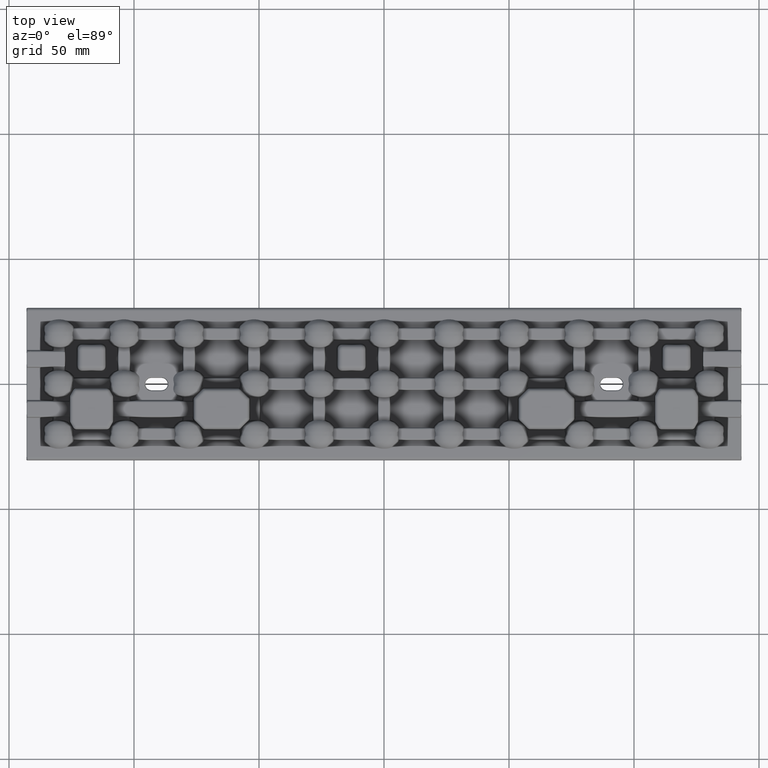
[diagram: clean part render]
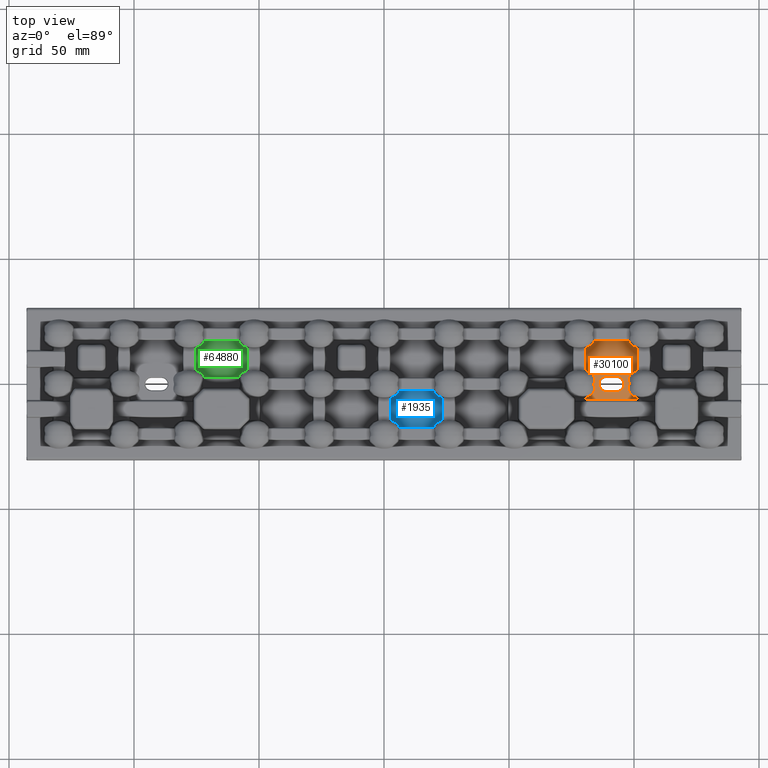
[diagram: same view with three faces highlighted in distinct colors, each labeled with its STEP entity id]
A machine part, top view with three faces highlighted in distinct colors.
Their STEP definitions:

[orange] entity #30100 — the highlighted planar face has unit normal (-0, 0, 1).
#277 = VECTOR ( 'NONE', #27429, 1000.000000000000000 ) ;
#289 = VERTEX_POINT ( 'NONE', #24536 ) ;
#296 = CARTESIAN_POINT ( 'NONE',  ( 98.43869014125911600, -3.735444147710731400, 1.999999999999999600 ) ) ;
#639 = VERTEX_POINT ( 'NONE', #73683 ) ;
#913 = CARTESIAN_POINT ( 'NONE',  ( 99.62640510720928000, 4.730987706999896700, 1.999999999999999100 ) ) ;
#990 = CARTESIAN_POINT ( 'NONE',  ( 80.74142219370168000, 5.460893193894268200, 2.000000000000000000 ) ) ;
#1166 = CARTESIAN_POINT ( 'NONE',  ( 97.78475374245123000, 1.321526035106113800, 1.999999999999721600 ) ) ;
#1310 = CARTESIAN_POINT ( 'NONE',  ( 81.44640795026977300, 14.78961119562334600, 2.000000000000001800 ) ) ;
#1363 = CARTESIAN_POINT ( 'NONE',  ( 82.59717095400965500, 4.587828159182689300, 2.000000000000141700 ) ) ;
#1382 = VECTOR ( 'NONE', #33136, 1000.000000000000000 ) ;
#1512 = DIRECTION ( 'NONE',  ( 0.0000000000000000000, -0.0000000000000000000, -1.000000000000000000 ) ) ;
#2007 = B_SPLINE_CURVE_WITH_KNOTS ( 'NONE', 3,
 ( #8662, #44672, #75012, #38884, #2896, #44937, #8909, #50971, #14994, #56969, #21043, #63033 ),
 .UNSPECIFIED., .F., .F.,
 ( 4, 2, 2, 2, 2, 4 ),
 ( 0.0000000000000000000, 0.001114944841971941900, 0.001672417262957909000, 0.002229889683943875600, 0.003344834525915839600, 0.004459779367887804100 ),
 .UNSPECIFIED. ) ;
#2126 = CARTESIAN_POINT ( 'NONE',  ( 0.0000000000000000000, -6.228681456733721000, 2.000000000000000000 ) ) ;
#2896 = CARTESIAN_POINT ( 'NONE',  ( 98.67899717475172800, 16.00835536796488900, 2.000000000000605300 ) ) ;
#3294 = CARTESIAN_POINT ( 'NONE',  ( 97.85770592230181800, -1.074001446737116800, 1.999999999999928100 ) ) ;
#5783 = CARTESIAN_POINT ( 'NONE',  ( 81.23445959650202000, -5.303634268258525400, 2.000000000000133700 ) ) ;
#6010 = CARTESIAN_POINT ( 'NONE',  ( 80.74142219370166600, 14.53910680610568600, 2.000000000000000000 ) ) ;
#6031 = CARTESIAN_POINT ( 'NONE',  ( 84.26756440194364500, -1.969308059692606700, 2.000000000000001300 ) ) ;
#6328 = CARTESIAN_POINT ( 'NONE',  ( 98.98930174818488600, -4.277950948355939300, 2.000000000000048000 ) ) ;
#6649 = CARTESIAN_POINT ( 'NONE',  ( 96.01285965834198100, -1.592040838891558300E-015, 2.000000000000000000 ) ) ;
#6672 = VERTEX_POINT ( 'NONE', #6010 ) ;
#6925 = CARTESIAN_POINT ( 'NONE',  ( 98.99668545396727400, 4.284042499998435900, 1.999999999999999600 ) ) ;
#7004 = EDGE_LOOP ( 'NONE', ( #29050, #62003, #53557, #54531, #14167, #61153, #20823, #58362, #43419, #18993, #35876, #67960, #73697, #30312 ) ) ;
#7139 = CARTESIAN_POINT ( 'NONE',  ( 84.20756797739517200, 1.321598108423056600, 1.999999999999897600 ) ) ;
#7195 = CIRCLE ( 'NONE', #63554, 3.012859658342081900 ) ;
#7334 = VERTEX_POINT ( 'NONE', #27419 ) ;
#7346 = CARTESIAN_POINT ( 'NONE',  ( 82.43502197326503700, 15.29853394021126600, 2.000000000000000400 ) ) ;
#7400 = CARTESIAN_POINT ( 'NONE',  ( 81.71205981101827800, 5.102806630189242300, 2.000000000000000900 ) ) ;
#7942 = CARTESIAN_POINT ( 'NONE',  ( 84.14229413950298000, 1.074001471699702800, 1.999999999992754000 ) ) ;
#7978 = LINE ( 'NONE', #28706, #54004 ) ;
#8035 = EDGE_CURVE ( 'NONE', #25635, #49258, #41551, .T. ) ;
#8090 = EDGE_CURVE ( 'NONE', #11808, #60977, #17080, .T. ) ;
#8662 = CARTESIAN_POINT ( 'NONE',  ( 97.87528341715064100, 17.25857780629792200, 2.000000000000000000 ) ) ;
#8909 = CARTESIAN_POINT ( 'NONE',  ( 99.09860470962297500, 15.63777386931149800, 2.000000000000000000 ) ) ;
#9555 = AXIS2_PLACEMENT_3D ( 'NONE', #35586, #29804, #72010 ) ;
#9580 = B_SPLINE_CURVE_WITH_KNOTS ( 'NONE', 3,
 ( #37081, #12940, #7139, #49187, #13199, #55201, #19274, #61256, #25295, #67358, #31290, #73516, #37343, #1363, #43440, #7400, #49446, #13450 ),
 .UNSPECIFIED., .F., .F.,
 ( 4, 2, 2, 2, 2, 2, 2, 2, 4 ),
 ( 0.0005961375090280039400, 0.0009801429283145099300, 0.001364148347601016000, 0.002132159186174027400, 0.002900170024747038300, 0.003668180863320049600, 0.004436191701893062700, 0.005204202540466074500, 0.006740224217612135300 ),
 .UNSPECIFIED. ) ;
#10091 = CARTESIAN_POINT ( 'NONE',  ( 101.2585778062981300, -4.445222154178567900, 2.000000000000000000 ) ) ;
#10654 = ORIENTED_EDGE ( 'NONE', *, *, #16138, .T. ) ;
#11808 = VERTEX_POINT ( 'NONE', #50843 ) ;
#11825 = CARTESIAN_POINT ( 'NONE',  ( 82.37407811878962600, -4.730697634440048200, 2.000000000000000000 ) ) ;
#12094 = CARTESIAN_POINT ( 'NONE',  ( 84.21537125051561600, -1.321949940138769800, 1.999999999999863000 ) ) ;
#12287 = VERTEX_POINT ( 'NONE', #17192 ) ;
#12385 = CARTESIAN_POINT ( 'NONE',  ( 99.61913803724856100, -4.726566769627140700, 1.999999999999999600 ) ) ;
#12583 = CARTESIAN_POINT ( 'NONE',  ( 88.99999999999990100, -1.836970198721029200E-015, 2.000000000000000000 ) ) ;
#12940 = CARTESIAN_POINT ( 'NONE',  ( 84.17848212711336900, 1.196786239459573200, 2.000000000000000900 ) ) ;
#12982 = CARTESIAN_POINT ( 'NONE',  ( 98.44160131915343500, 3.739053391010542800, 1.999999999999999600 ) ) ;
#13104 = DIRECTION ( 'NONE',  ( 9.251858538542944200E-016, -1.000000000000000000, 0.0000000000000000000 ) ) ;
#13199 = CARTESIAN_POINT ( 'NONE',  ( 84.26183617900368000, 1.706540553851350500, 1.999999999999959800 ) ) ;
#13395 = CARTESIAN_POINT ( 'NONE',  ( 83.03792449826417500, 15.74836117042493700, 1.999999999999084500 ) ) ;
#13450 = CARTESIAN_POINT ( 'NONE',  ( 80.74142219370168000, 5.460893193894268200, 2.000000000000000000 ) ) ;
#13702 = CARTESIAN_POINT ( 'NONE',  ( 101.2585778062981300, -5.460893199764008400, 2.000000000000000000 ) ) ;
#14167 = ORIENTED_EDGE ( 'NONE', *, *, #68910, .F. ) ;
#14994 = CARTESIAN_POINT ( 'NONE',  ( 99.87780439658128300, 15.11663491878732500, 1.999999999999998700 ) ) ;
#15407 = CARTESIAN_POINT ( 'NONE',  ( 97.96102146865918300, -0.7234548539329035400, 1.999999999999927600 ) ) ;
#15659 = CARTESIAN_POINT ( 'NONE',  ( 98.01315452245542300, 0.3655012217748671600, 2.000000000000000000 ) ) ;
#16138 = EDGE_CURVE ( 'NONE', #29096, #30961, #30330, .T. ) ;
#16192 = DIRECTION ( 'NONE',  ( 0.0000000000000000000, 1.000000000000000000, -0.0000000000000000000 ) ) ;
#17080 = LINE ( 'NONE', #2126, #66905 ) ;
#17192 = CARTESIAN_POINT ( 'NONE',  ( 101.2585778062981300, 5.460893199763964000, 2.000000000000000000 ) ) ;
#17797 = VERTEX_POINT ( 'NONE', #25520 ) ;
#17914 = CARTESIAN_POINT ( 'NONE',  ( 83.00424861268012900, -4.283286065571128500, 2.000000000000624800 ) ) ;
#17953 = CARTESIAN_POINT ( 'NONE',  ( 97.82156554461914800, -1.196624679212736400, 1.999999999999999600 ) ) ;
#18196 = CARTESIAN_POINT ( 'NONE',  ( 97.75085427278590100, -1.574977623442797900, 1.999999999999800600 ) ) ;
#18218 = ORIENTED_EDGE ( 'NONE', *, *, #47277, .T. ) ;
#18458 = CARTESIAN_POINT ( 'NONE',  ( 100.7656478504817800, -5.303668547989127000, 1.999999999999998700 ) ) ;
#18659 = DIRECTION ( 'NONE',  ( 1.000000000000000000, 0.0000000000000000000, 0.0000000000000000000 ) ) ;
#18993 = ORIENTED_EDGE ( 'NONE', *, *, #8035, .T. ) ;
#19066 = CARTESIAN_POINT ( 'NONE',  ( 98.01011052647366700, 3.091443646617064300, 2.000000000000041300 ) ) ;
#19274 = CARTESIAN_POINT ( 'NONE',  ( 84.23856500899532300, 2.351581289907211500, 2.000000000000000000 ) ) ;
#19294 = LINE ( 'NONE', #69513, #1382 ) ;
#19482 = CARTESIAN_POINT ( 'NONE',  ( 83.44507333174972500, 16.13723412517457900, 2.000000000000066600 ) ) ;
#20036 = CARTESIAN_POINT ( 'NONE',  ( 83.98684495882460500, 0.3654953217809184300, 2.000000000000000000 ) ) ;
#20823 = ORIENTED_EDGE ( 'NONE', *, *, #36884, .F. ) ;
#20988 = VERTEX_POINT ( 'NONE', #990 ) ;
#21043 = CARTESIAN_POINT ( 'NONE',  ( 100.9001623016136800, 14.65342680097824200, 2.000000000000000900 ) ) ;
#21709 = CARTESIAN_POINT ( 'NONE',  ( 97.85770592230186100, 1.074001446737053300, 1.999999999999976700 ) ) ;
#22397 = CARTESIAN_POINT ( 'NONE',  ( 101.2585778062981300, -6.228681456733721000, 2.000000000000000000 ) ) ;
#23954 = CARTESIAN_POINT ( 'NONE',  ( 83.55865366993258200, -3.738730253960392200, 2.000000000000000900 ) ) ;
#23993 = CARTESIAN_POINT ( 'NONE',  ( 97.85770592230181800, -1.074001446737116800, 1.999999999999928100 ) ) ;
#24245 = CARTESIAN_POINT ( 'NONE',  ( 97.72929055930015400, -2.094291261402156500, 1.999999999999991300 ) ) ;
#24536 = CARTESIAN_POINT ( 'NONE',  ( 97.85770592230181800, -1.074001446737116800, 1.999999999999928100 ) ) ;
#24645 = B_SPLINE_CURVE_WITH_KNOTS ( 'NONE', 3,
 ( #30813, #66894, #36871, #913, #42955, #6925, #48988, #12982, #54988, #19066, #61030, #25072, #67147, #31085, #73279, #37128, #1166, #43233 ),
 .UNSPECIFIED., .F., .F.,
 ( 4, 2, 2, 2, 2, 2, 2, 2, 4 ),
 ( 0.0000000000000000000, 0.001529839353966039700, 0.002294759030949077900, 0.003059678707932115800, 0.003824598384915154200, 0.004589518061898192200, 0.004971977900389711400, 0.005354437738881229700, 0.006119357415864267200 ),
 .UNSPECIFIED. ) ;
#25072 = CARTESIAN_POINT ( 'NONE',  ( 97.79787916432304900, 2.481995976880723400, 1.999999999999997800 ) ) ;
#25295 = CARTESIAN_POINT ( 'NONE',  ( 83.99178305065653700, 3.087952510916547800, 2.000000000000002200 ) ) ;
#25495 = CARTESIAN_POINT ( 'NONE',  ( 83.79501201246351600, 16.58190241218928700, 1.999999999999996700 ) ) ;
#25520 = CARTESIAN_POINT ( 'NONE',  ( 101.2585778062981300, 14.53910680023600400, 2.000000000000000000 ) ) ;
#25604 = LINE ( 'NONE', #67841, #39710 ) ;
#25635 = VERTEX_POINT ( 'NONE', #7942 ) ;
#25943 = VERTEX_POINT ( 'NONE', #41240 ) ;
#25998 = EDGE_CURVE ( 'NONE', #25943, #29096, #36260, .T. ) ;
#26023 = CARTESIAN_POINT ( 'NONE',  ( 84.14229413950298000, 1.074001471699702800, 1.999999999992754000 ) ) ;
#26064 = EDGE_CURVE ( 'NONE', #7334, #11808, #64537, .T. ) ;
#26300 = DIRECTION ( 'NONE',  ( 1.000000000000000000, -0.0000000000000000000, 0.0000000000000000000 ) ) ;
#27419 = CARTESIAN_POINT ( 'NONE',  ( 80.74142219370168000, -5.460893193894309900, 2.000000000000000000 ) ) ;
#27429 = DIRECTION ( 'NONE',  ( 1.000000000000000000, 1.084202172485503300E-016, -0.0000000000000000000 ) ) ;
#27998 = FACE_BOUND ( 'NONE', #71999, .T. ) ;
#28286 = VERTEX_POINT ( 'NONE', #6649 ) ;
#28706 = CARTESIAN_POINT ( 'NONE',  ( 82.44522215417829600, 17.25857780629792200, 2.000000000000000000 ) ) ;
#29050 = ORIENTED_EDGE ( 'NONE', *, *, #74946, .F. ) ;
#29096 = VERTEX_POINT ( 'NONE', #60285 ) ;
#29804 = DIRECTION ( 'NONE',  ( -0.0000000000000000000, 0.0000000000000000000, 1.000000000000000000 ) ) ;
#29935 = CARTESIAN_POINT ( 'NONE',  ( 83.98997629533529600, -3.091256687682806700, 2.000000000000044000 ) ) ;
#30100 = ADVANCED_FACE ( 'NONE', ( #42109, #27998 ), #65888, .T. ) ;
#30230 = CARTESIAN_POINT ( 'NONE',  ( 97.90231760156548500, -2.852587655935891600, 2.000000000000001300 ) ) ;
#30312 = ORIENTED_EDGE ( 'NONE', *, *, #68250, .T. ) ;
#30330 = LINE ( 'NONE', #51359, #277 ) ;
#30445 = B_SPLINE_CURVE_WITH_KNOTS ( 'NONE', 3,
 ( #3294, #15407, #51635, #15659, #57635, #21709 ),
 .UNSPECIFIED., .F., .F.,
 ( 4, 2, 4 ),
 ( 0.0000000000000000000, 0.001085195747919804600, 0.002170391495839609200 ),
 .UNSPECIFIED. ) ;
#30813 = CARTESIAN_POINT ( 'NONE',  ( 101.2585778062981300, 5.460893199763964000, 2.000000000000000000 ) ) ;
#30961 = VERTEX_POINT ( 'NONE', #77021 ) ;
#31085 = CARTESIAN_POINT ( 'NONE',  ( 97.73903709689874100, 2.097430945669185300, 1.999999999999653200 ) ) ;
#31232 = CARTESIAN_POINT ( 'NONE',  ( 80.74142219370166600, 14.53910680610568600, 2.000000000000000000 ) ) ;
#31290 = CARTESIAN_POINT ( 'NONE',  ( 83.56136751711629500, 3.735376299703735200, 2.000000000000001800 ) ) ;
#31489 = CARTESIAN_POINT ( 'NONE',  ( 84.06336189217307700, 17.07877684787498800, 1.999999999999999600 ) ) ;
#32061 = CARTESIAN_POINT ( 'NONE',  ( 84.03897859452686700, -0.7234548944411141000, 2.000000000000000000 ) ) ;
#32182 = B_SPLINE_CURVE_WITH_KNOTS ( 'NONE', 3,
 ( #31232, #67305, #1310, #43385, #7346, #49390, #13395, #55405, #19482, #61453, #25495, #67570, #31489, #73718 ),
 .UNSPECIFIED., .F., .F.,
 ( 4, 2, 2, 2, 2, 2, 4 ),
 ( 1.734723475976807100E-018, 0.001111915370787490600, 0.002223830741574979400, 0.002779788426968707400, 0.003335746112362435000, 0.003891703797756162600, 0.004447661483149890200 ),
 .UNSPECIFIED. ) ;
#32372 = EDGE_CURVE ( 'NONE', #30961, #28286, #62605, .T. ) ;
#33120 = LINE ( 'NONE', #75748, #49126 ) ;
#33136 = DIRECTION ( 'NONE',  ( 9.251858538542944200E-016, -1.000000000000000000, 0.0000000000000000000 ) ) ;
#33489 = CARTESIAN_POINT ( 'NONE',  ( 84.14229413949614400, -1.074001471697171300, 2.000000000010464100 ) ) ;
#33937 = CARTESIAN_POINT ( 'NONE',  ( 92.99999999999990100, -1.592040838891558300E-015, 2.000000000000000000 ) ) ;
#34259 = VERTEX_POINT ( 'NONE', #39019 ) ;
#34403 = VECTOR ( 'NONE', #13104, 1000.000000000000000 ) ;
#34584 = EDGE_CURVE ( 'NONE', #25635, #20988, #9580, .T. ) ;
#34752 = DIRECTION ( 'NONE',  ( -1.000000000000000000, 0.0000000000000000000, 0.0000000000000000000 ) ) ;
#35586 = CARTESIAN_POINT ( 'NONE',  ( 0.0000000000000000000, 0.0000000000000000000, 2.000000000000000000 ) ) ;
#35702 = CARTESIAN_POINT ( 'NONE',  ( 80.74142219370168000, -5.460893193894309900, 2.000000000000000000 ) ) ;
#35876 = ORIENTED_EDGE ( 'NONE', *, *, #64104, .F. ) ;
#35960 = CARTESIAN_POINT ( 'NONE',  ( 84.20174675814644200, -2.483514733839518500, 1.999999999999989100 ) ) ;
#36254 = CARTESIAN_POINT ( 'NONE',  ( 98.27755393781316700, -3.531508894596997900, 1.999999999999999600 ) ) ;
#36260 = CIRCLE ( 'NONE', #69442, 3.012859658342081900 ) ;
#36871 = CARTESIAN_POINT ( 'NONE',  ( 100.2938624783324300, 5.105397898926746300, 1.999999999999999100 ) ) ;
#36884 = EDGE_CURVE ( 'NONE', #6672, #639, #32182, .T. ) ;
#37081 = CARTESIAN_POINT ( 'NONE',  ( 84.14229413950298000, 1.074001471699702800, 1.999999999992754000 ) ) ;
#37128 = CARTESIAN_POINT ( 'NONE',  ( 97.74058038011565900, 1.582266397288156100, 2.000000000000000000 ) ) ;
#37343 = CARTESIAN_POINT ( 'NONE',  ( 83.01026093098113300, 4.278284003696696500, 2.000000000000141200 ) ) ;
#37510 = CARTESIAN_POINT ( 'NONE',  ( 92.99999999999990100, -1.592040838891558300E-015, 2.000000000000000000 ) ) ;
#38884 = CARTESIAN_POINT ( 'NONE',  ( 98.54772348950083900, 16.14509560246114400, 2.000000000000020900 ) ) ;
#39019 = CARTESIAN_POINT ( 'NONE',  ( 97.85770592230186100, 1.074001446737053300, 1.999999999999976700 ) ) ;
#39189 = VERTEX_POINT ( 'NONE', #60283 ) ;
#39626 = DIRECTION ( 'NONE',  ( 0.0000000000000000000, 1.000000000000000000, -0.0000000000000000000 ) ) ;
#39710 = VECTOR ( 'NONE', #73963, 1000.000000000000000 ) ;
#40000 = DIRECTION ( 'NONE',  ( 1.000000000000000000, 0.0000000000000000000, 0.0000000000000000000 ) ) ;
#40825 = EDGE_CURVE ( 'NONE', #12287, #17797, #33120, .T. ) ;
#41240 = CARTESIAN_POINT ( 'NONE',  ( 88.99999999999990100, -3.012859658342088600, 2.000000000000000000 ) ) ;
#41551 = B_SPLINE_CURVE_WITH_KNOTS ( 'NONE', 3,
 ( #26023, #62013, #20036, #68144, #32061, #74271 ),
 .UNSPECIFIED., .F., .F.,
 ( 4, 2, 4 ),
 ( 0.0000000000000000000, 0.001085195773853729700, 0.002170391547707459500 ),
 .UNSPECIFIED. ) ;
#42050 = CARTESIAN_POINT ( 'NONE',  ( 84.26094487065327600, -2.097856799944680400, 1.999999999999809300 ) ) ;
#42109 = FACE_OUTER_BOUND ( 'NONE', #7004, .T. ) ;
#42363 = CARTESIAN_POINT ( 'NONE',  ( 98.79322347049050300, -4.107286651053903400, 1.999999999999999600 ) ) ;
#42955 = CARTESIAN_POINT ( 'NONE',  ( 99.41069949195758700, 4.593152252313268000, 2.000000000000000000 ) ) ;
#43233 = CARTESIAN_POINT ( 'NONE',  ( 97.85770592230186100, 1.074001446737053300, 1.999999999999976700 ) ) ;
#43385 = CARTESIAN_POINT ( 'NONE',  ( 82.11403311489185300, 15.11236120509381900, 2.000000000000001300 ) ) ;
#43412 = LINE ( 'NONE', #10091, #59319 ) ;
#43419 = ORIENTED_EDGE ( 'NONE', *, *, #34584, .F. ) ;
#43440 = CARTESIAN_POINT ( 'NONE',  ( 82.38137157163369300, 4.726251110385579300, 2.000000000000000900 ) ) ;
#43596 = DIRECTION ( 'NONE',  ( 1.000000000000000000, 0.0000000000000000000, 0.0000000000000000000 ) ) ;
#44672 = CARTESIAN_POINT ( 'NONE',  ( 97.99803419202372400, 16.89885493394615800, 2.000000000000003100 ) ) ;
#44937 = CARTESIAN_POINT ( 'NONE',  ( 98.95393234875423600, 15.75530069695256500, 2.000000000000606200 ) ) ;
#47277 = EDGE_CURVE ( 'NONE', #28286, #63992, #7195, .T. ) ;
#47843 = CARTESIAN_POINT ( 'NONE',  ( 81.70628350719046300, -5.105353993410618700, 2.000000000000000400 ) ) ;
#48098 = CARTESIAN_POINT ( 'NONE',  ( 84.25946920228092600, -1.582808662235438300, 2.000000000000000900 ) ) ;
#48378 = CARTESIAN_POINT ( 'NONE',  ( 99.40312674361477700, -4.588056543876776400, 2.000000000000048000 ) ) ;
#48988 = CARTESIAN_POINT ( 'NONE',  ( 98.79884343481460000, 4.112611608978948400, 2.000000000000000000 ) ) ;
#49095 = CARTESIAN_POINT ( 'NONE',  ( 80.74142219370168000, -6.403733341286148600, 2.000000000000000000 ) ) ;
#49126 = VECTOR ( 'NONE', #39626, 1000.000000000000000 ) ;
#49187 = CARTESIAN_POINT ( 'NONE',  ( 84.24927090036959500, 1.575922386107954500, 1.999999999999897200 ) ) ;
#49258 = VERTEX_POINT ( 'NONE', #33489 ) ;
#49390 = CARTESIAN_POINT ( 'NONE',  ( 82.89008342987784800, 15.62888595811225800, 2.000000000000000000 ) ) ;
#49446 = CARTESIAN_POINT ( 'NONE',  ( 81.23426444005420400, 5.303696515247316300, 2.000000000000000900 ) ) ;
#50424 = B_SPLINE_CURVE_WITH_KNOTS ( 'NONE', 3,
 ( #35702, #5783, #47843, #11825, #53839, #17914, #59876, #23954, #65994, #29935, #72123, #35960, #78221, #42050, #6031, #48098, #12094, #54091 ),
 .UNSPECIFIED., .F., .F.,
 ( 4, 2, 2, 2, 2, 2, 2, 2, 4 ),
 ( 5.473877254245887300E-016, 0.001530540898884042400, 0.002295811348325790100, 0.003061081797767537600, 0.003826352247209285500, 0.004591622696651033800, 0.004974257921371913800, 0.005356893146092793000, 0.006122163595534552100 ),
 .UNSPECIFIED. ) ;
#50430 = AXIS2_PLACEMENT_3D ( 'NONE', #33937, #76146, #40000 ) ;
#50746 = EDGE_CURVE ( 'NONE', #12287, #34259, #24645, .T. ) ;
#50843 = CARTESIAN_POINT ( 'NONE',  ( 80.74142219370168000, -6.228681456733721000, 2.000000000000000000 ) ) ;
#50865 = EDGE_CURVE ( 'NONE', #39189, #639, #7978, .T. ) ;
#50971 = CARTESIAN_POINT ( 'NONE',  ( 99.55062361644009200, 15.30768202563246700, 1.999999999999999100 ) ) ;
#51359 = CARTESIAN_POINT ( 'NONE',  ( -3.266548986968408800E-016, 3.012859658342074800, 2.000000000000000000 ) ) ;
#51635 = CARTESIAN_POINT ( 'NONE',  ( 98.01315509440669900, -0.3654953128101505200, 2.000000000000000000 ) ) ;
#53557 = ORIENTED_EDGE ( 'NONE', *, *, #50746, .F. ) ;
#53839 = CARTESIAN_POINT ( 'NONE',  ( 82.58992051376249300, -4.592748212805552100, 2.000000000000624800 ) ) ;
#54004 = VECTOR ( 'NONE', #34752, 1000.000000000000000 ) ;
#54091 = CARTESIAN_POINT ( 'NONE',  ( 84.14229413949614400, -1.074001471697171300, 2.000000000010464100 ) ) ;
#54126 = CARTESIAN_POINT ( 'NONE',  ( 97.79252382607825200, -1.321221321118816000, 1.999999999999801000 ) ) ;
#54405 = CARTESIAN_POINT ( 'NONE',  ( 100.2886080330388700, -5.103124325894247800, 2.000000000000000000 ) ) ;
#54531 = ORIENTED_EDGE ( 'NONE', *, *, #40825, .T. ) ;
#54607 = DIRECTION ( 'NONE',  ( 0.0000000000000000000, -0.0000000000000000000, -1.000000000000000000 ) ) ;
#54988 = CARTESIAN_POINT ( 'NONE',  ( 98.27865832373649400, 3.532861123742006000, 2.000000000000041300 ) ) ;
#55201 = CARTESIAN_POINT ( 'NONE',  ( 84.27062758848939000, 2.094669899912990000, 1.999999999999959400 ) ) ;
#55405 = CARTESIAN_POINT ( 'NONE',  ( 83.31500584046108300, 16.00230770594037800, 1.999999999999084500 ) ) ;
#55711 = ORIENTED_EDGE ( 'NONE', *, *, #25998, .T. ) ;
#56969 = CARTESIAN_POINT ( 'NONE',  ( 100.5516370764030700, 14.79023344848449800, 1.999999999999999600 ) ) ;
#57635 = CARTESIAN_POINT ( 'NONE',  ( 97.96102146180622600, 0.7234548771856939000, 2.000000000000000000 ) ) ;
#58362 = ORIENTED_EDGE ( 'NONE', *, *, #59521, .T. ) ;
#59319 = VECTOR ( 'NONE', #16192, 1000.000000000000000 ) ;
#59521 = EDGE_CURVE ( 'NONE', #6672, #20988, #19294, .T. ) ;
#59876 = CARTESIAN_POINT ( 'NONE',  ( 83.20176156549401000, -4.112035434156784900, 2.000000000000001300 ) ) ;
#60174 = CARTESIAN_POINT ( 'NONE',  ( 97.73823683625445800, -1.705328132473942400, 1.999999999999990500 ) ) ;
#60283 = CARTESIAN_POINT ( 'NONE',  ( 97.87528341715064100, 17.25857780629792200, 2.000000000000000000 ) ) ;
#60285 = CARTESIAN_POINT ( 'NONE',  ( 88.99999999999990100, 3.012859658342084600, 2.000000000000000000 ) ) ;
#60439 = CARTESIAN_POINT ( 'NONE',  ( 101.2585778062981300, -5.460893199764008400, 2.000000000000000000 ) ) ;
#60977 = VERTEX_POINT ( 'NONE', #22397 ) ;
#61030 = CARTESIAN_POINT ( 'NONE',  ( 97.90431207862008000, 2.857431546012938500, 1.999999999999997800 ) ) ;
#61153 = ORIENTED_EDGE ( 'NONE', *, *, #50865, .T. ) ;
#61256 = CARTESIAN_POINT ( 'NONE',  ( 84.09749801395179200, 2.852870962854717500, 2.000000000000000400 ) ) ;
#61453 = CARTESIAN_POINT ( 'NONE',  ( 83.68470931873400800, 16.42632786501948100, 2.000000000000066600 ) ) ;
#62003 = ORIENTED_EDGE ( 'NONE', *, *, #64913, .T. ) ;
#62013 = CARTESIAN_POINT ( 'NONE',  ( 84.03897858767665200, 0.7234548711910273600, 1.999999999992754000 ) ) ;
#62275 = EDGE_CURVE ( 'NONE', #63992, #25943, #25604, .T. ) ;
#62605 = CIRCLE ( 'NONE', #50430, 3.012859658342081900 ) ;
#63033 = CARTESIAN_POINT ( 'NONE',  ( 101.2585778062981300, 14.53910680023600400, 2.000000000000000000 ) ) ;
#63554 = AXIS2_PLACEMENT_3D ( 'NONE', #37510, #1512, #43596 ) ;
#63992 = VERTEX_POINT ( 'NONE', #73077 ) ;
#64104 = EDGE_CURVE ( 'NONE', #7334, #49258, #50424, .T. ) ;
#64286 = ORIENTED_EDGE ( 'NONE', *, *, #32372, .T. ) ;
#64537 = LINE ( 'NONE', #49095, #34403 ) ;
#64913 = EDGE_CURVE ( 'NONE', #289, #34259, #30445, .T. ) ;
#65888 = PLANE ( 'NONE',  #9555 ) ;
#65994 = CARTESIAN_POINT ( 'NONE',  ( 83.72154877107152500, -3.532565097609639000, 2.000000000000045300 ) ) ;
#66291 = CARTESIAN_POINT ( 'NONE',  ( 97.76106538198929700, -2.349894048740944100, 2.000000000000001300 ) ) ;
#66894 = CARTESIAN_POINT ( 'NONE',  ( 100.7655576338378700, 5.303639772540859300, 1.999999999999999100 ) ) ;
#66905 = VECTOR ( 'NONE', #26300, 1000.000000000000000 ) ;
#67147 = CARTESIAN_POINT ( 'NONE',  ( 97.77158561727328800, 2.353362776324783700, 1.999999999999653200 ) ) ;
#67305 = CARTESIAN_POINT ( 'NONE',  ( 81.09960658913114200, 14.65335309428691900, 2.000000000000000000 ) ) ;
#67358 = CARTESIAN_POINT ( 'NONE',  ( 83.72192931011343800, 3.532270559181020200, 2.000000000000002200 ) ) ;
#67570 = CARTESIAN_POINT ( 'NONE',  ( 83.98407401550315400, 16.90802450039247500, 1.999999999999995800 ) ) ;
#67841 = CARTESIAN_POINT ( 'NONE',  ( 88.99999999999990100, -3.012859658342088600, 2.000000000000000000 ) ) ;
#67960 = ORIENTED_EDGE ( 'NONE', *, *, #26064, .T. ) ;
#68144 = CARTESIAN_POINT ( 'NONE',  ( 83.98684553077599400, -0.3655012307469950900, 2.000000000000000000 ) ) ;
#68250 = EDGE_CURVE ( 'NONE', #60977, #71946, #43412, .T. ) ;
#68910 = EDGE_CURVE ( 'NONE', #39189, #17797, #2007, .T. ) ;
#69442 = AXIS2_PLACEMENT_3D ( 'NONE', #12583, #54607, #18659 ) ;
#69513 = CARTESIAN_POINT ( 'NONE',  ( 80.74142219370168000, 4.445222154178559900, 2.000000000000000000 ) ) ;
#69948 = ORIENTED_EDGE ( 'NONE', *, *, #62275, .T. ) ;
#71946 = VERTEX_POINT ( 'NONE', #13702 ) ;
#71999 = EDGE_LOOP ( 'NONE', ( #69948, #55711, #10654, #64286, #18218 ) ) ;
#72010 = DIRECTION ( 'NONE',  ( 1.000000000000000000, 0.0000000000000000000, 0.0000000000000000000 ) ) ;
#72123 = CARTESIAN_POINT ( 'NONE',  ( 84.09552455972385600, -2.857607429090641500, 1.999999999999989100 ) ) ;
#72428 = CARTESIAN_POINT ( 'NONE',  ( 98.00814636216676900, -3.087746737631219800, 2.000000000000000000 ) ) ;
#72943 = B_SPLINE_CURVE_WITH_KNOTS ( 'NONE', 3,
 ( #23993, #17953, #54126, #18196, #60174, #24245, #66291, #30230, #72428, #36254, #296, #42363, #6328, #48378, #12385, #54405, #18458, #60439 ),
 .UNSPECIFIED., .F., .F.,
 ( 4, 2, 2, 2, 2, 2, 2, 2, 4 ),
 ( 0.0005957444063414309300, 0.0009792129165459681700, 0.001362681426750505300, 0.002129618447159579100, 0.002896555467568652500, 0.003663492487977725500, 0.004430429508386799300, 0.005197366528795872700, 0.006731240569613983000 ),
 .UNSPECIFIED. ) ;
#73077 = CARTESIAN_POINT ( 'NONE',  ( 92.99999999999990100, -3.012859658342088100, 2.000000000000000000 ) ) ;
#73279 = CARTESIAN_POINT ( 'NONE',  ( 97.73242335794373000, 1.968986516917112600, 2.000000000000000400 ) ) ;
#73516 = CARTESIAN_POINT ( 'NONE',  ( 83.20683198613565400, 4.107235950989875500, 2.000000000000001800 ) ) ;
#73683 = CARTESIAN_POINT ( 'NONE',  ( 84.12471664366869100, 17.25857780629792200, 2.000000000000000000 ) ) ;
#73697 = ORIENTED_EDGE ( 'NONE', *, *, #8090, .T. ) ;
#73718 = CARTESIAN_POINT ( 'NONE',  ( 84.12471664366869100, 17.25857780629792200, 2.000000000000000000 ) ) ;
#73963 = DIRECTION ( 'NONE',  ( -1.000000000000000000, -1.084202172485503300E-016, -0.0000000000000000000 ) ) ;
#74271 = CARTESIAN_POINT ( 'NONE',  ( 84.14229413949614400, -1.074001471697171300, 2.000000000010464100 ) ) ;
#74946 = EDGE_CURVE ( 'NONE', #289, #71946, #72943, .T. ) ;
#75012 = CARTESIAN_POINT ( 'NONE',  ( 98.18921699528685600, 16.58015194439519400, 2.000000000000020900 ) ) ;
#75748 = CARTESIAN_POINT ( 'NONE',  ( 101.2585778062981300, 15.55477784582145000, 2.000000000000000000 ) ) ;
#76146 = DIRECTION ( 'NONE',  ( 0.0000000000000000000, -0.0000000000000000000, -1.000000000000000000 ) ) ;
#77021 = CARTESIAN_POINT ( 'NONE',  ( 92.99999999999990100, 3.012859658342085000, 2.000000000000000000 ) ) ;
#78221 = CARTESIAN_POINT ( 'NONE',  ( 84.22825129356249400, -2.354360509929686300, 1.999999999999809700 ) ) ;

[blue] entity #1935 — the highlighted planar face has unit normal (-0, 0, 1).
#190 = CARTESIAN_POINT ( 'NONE',  ( 22.55362577035897000, -14.78960352435126100, 2.000000000000002200 ) ) ;
#1210 = CARTESIAN_POINT ( 'NONE',  ( 5.315005840461279400, -3.997692294059428600, 1.999999999999082300 ) ) ;
#1637 = VERTEX_POINT ( 'NONE', #12004 ) ;
#1935 = ADVANCED_FACE ( 'NONE', ( #68506 ), #53578, .T. ) ;
#3116 = CARTESIAN_POINT ( 'NONE',  ( 22.55163707640317100, -5.209766551515552500, 2.000000000000000000 ) ) ;
#3732 = CARTESIAN_POINT ( 'NONE',  ( 5.050177006516446600, -15.74599484345640800, 1.999999999999980900 ) ) ;
#3791 = EDGE_LOOP ( 'NONE', ( #4244, #25899, #53171, #12778, #66408, #77851, #5289, #37254 ) ) ;
#4244 = ORIENTED_EDGE ( 'NONE', *, *, #49070, .F. ) ;
#5289 = ORIENTED_EDGE ( 'NONE', *, *, #17396, .F. ) ;
#6213 = CARTESIAN_POINT ( 'NONE',  ( 21.56537355590034000, -15.29831029551937900, 2.000000000000000000 ) ) ;
#6876 = EDGE_CURVE ( 'NONE', #49128, #36154, #20427, .T. ) ;
#7227 = CARTESIAN_POINT ( 'NONE',  ( 5.684709318734205000, -3.573672134980283100, 2.000000000000067100 ) ) ;
#7576 = VECTOR ( 'NONE', #70479, 1000.000000000000000 ) ;
#8025 = VECTOR ( 'NONE', #77641, 1000.000000000000000 ) ;
#8300 = CARTESIAN_POINT ( 'NONE',  ( 2.741422193701769800, -14.53910680610575800, 2.000000000000000000 ) ) ;
#9123 = CARTESIAN_POINT ( 'NONE',  ( 23.25857780629830900, -5.460893199764053700, 2.000000000000000000 ) ) ;
#9760 = CARTESIAN_POINT ( 'NONE',  ( 4.117789766803922700, -15.11432198692050500, 1.999999999999999600 ) ) ;
#10078 = CARTESIAN_POINT ( 'NONE',  ( 6.124716643668764800, -2.741422193701768900, 2.000000000000000000 ) ) ;
#11491 = EDGE_CURVE ( 'NONE', #22358, #1637, #71535, .T. ) ;
#12004 = CARTESIAN_POINT ( 'NONE',  ( 19.87528341715048100, -17.25857780629830200, 2.000000000000000000 ) ) ;
#12021 = CARTESIAN_POINT ( 'NONE',  ( 22.90037997865001500, -14.65335737083731600, 2.000000000000001300 ) ) ;
#12282 = CARTESIAN_POINT ( 'NONE',  ( 20.96272174899001300, -15.74780805109812800, 1.999999999999600500 ) ) ;
#12778 = ORIENTED_EDGE ( 'NONE', *, *, #75163, .T. ) ;
#13027 = CARTESIAN_POINT ( 'NONE',  ( 2.741422193701767500, -5.460893193894286000, 2.000000000000000000 ) ) ;
#13271 = EDGE_CURVE ( 'NONE', #24375, #73103, #21965, .T. ) ;
#13288 = CARTESIAN_POINT ( 'NONE',  ( 5.984074015503298800, -3.091975499607255300, 1.999999999999996700 ) ) ;
#15059 = B_SPLINE_CURVE_WITH_KNOTS ( 'NONE', 3,
 ( #23882, #12021, #190, #42245, #6213, #48271, #12282, #54285, #18349, #60328, #24396, #66431, #30379, #72591 ),
 .UNSPECIFIED., .F., .F.,
 ( 4, 2, 2, 2, 2, 2, 4 ),
 ( 0.0000000000000000000, 0.001111486230891823700, 0.002222972461783647500, 0.002778715577229565100, 0.003334458692675482700, 0.003890201808121400800, 0.004445944923567318400 ),
 .UNSPECIFIED. ) ;
#15593 = CARTESIAN_POINT ( 'NONE',  ( 6.063438288028596200, -17.07900072699941400, 2.000000000000000400 ) ) ;
#15858 = CARTESIAN_POINT ( 'NONE',  ( 3.099585995928855600, -14.65334652589106000, 2.000000000000001800 ) ) ;
#16281 = CARTESIAN_POINT ( 'NONE',  ( 23.25857780629830900, -4.445222154178668300, 2.000000000000000000 ) ) ;
#16413 = CARTESIAN_POINT ( 'NONE',  ( 23.25857780629830900, -5.460893199764053700, 2.000000000000000000 ) ) ;
#17396 = EDGE_CURVE ( 'NONE', #22358, #27171, #51735, .T. ) ;
#18349 = CARTESIAN_POINT ( 'NONE',  ( 20.55524195587830100, -16.13689224558562800, 2.000000000000090200 ) ) ;
#19366 = CARTESIAN_POINT ( 'NONE',  ( 6.124716643668764800, -2.741422193701768900, 2.000000000000000000 ) ) ;
#20427 = B_SPLINE_CURVE_WITH_KNOTS ( 'NONE', 3,
 ( #21010, #38852, #44895, #62999, #26997, #69153, #33034, #75232, #39102, #3116, #45166, #9123 ),
 .UNSPECIFIED., .F., .F.,
 ( 4, 2, 2, 2, 2, 4 ),
 ( 2.602085213965210600E-018, 0.001114944841972087200, 0.001672417262958132500, 0.002229889683944177900, 0.003344834525916276300, 0.004459779367888374800 ),
 .UNSPECIFIED. ) ;
#20878 = EDGE_CURVE ( 'NONE', #46135, #36154, #39579, .T. ) ;
#21010 = CARTESIAN_POINT ( 'NONE',  ( 19.87528341715052300, -2.741422193701764900, 2.000000000000000000 ) ) ;
#21965 = B_SPLINE_CURVE_WITH_KNOTS ( 'NONE', 3,
 ( #13027, #61081, #25120, #67191, #31129, #73329, #37169, #1210, #43282, #7227, #49281, #13288, #55291, #19366 ),
 .UNSPECIFIED., .F., .F.,
 ( 4, 2, 2, 2, 2, 2, 4 ),
 ( 0.0000000000000000000, 0.001111915370787522600, 0.002223830741575045300, 0.002779788426968808000, 0.003335746112362570300, 0.003891703797756332600, 0.004447661483150094900 ),
 .UNSPECIFIED. ) ;
#22358 = VERTEX_POINT ( 'NONE', #38007 ) ;
#23882 = CARTESIAN_POINT ( 'NONE',  ( 23.25857780629830900, -14.53910680023597000, 2.000000000000000000 ) ) ;
#24375 = VERTEX_POINT ( 'NONE', #75149 ) ;
#24396 = CARTESIAN_POINT ( 'NONE',  ( 20.20530534545018100, -16.58140207693437800, 1.999999999999999100 ) ) ;
#25120 = CARTESIAN_POINT ( 'NONE',  ( 3.446407950269897200, -5.210388804376599100, 2.000000000000003600 ) ) ;
#25899 = ORIENTED_EDGE ( 'NONE', *, *, #20878, .T. ) ;
#26997 = CARTESIAN_POINT ( 'NONE',  ( 20.67899717475163600, -3.991644632034995400, 2.000000000000605300 ) ) ;
#27171 = VERTEX_POINT ( 'NONE', #8300 ) ;
#27627 = CARTESIAN_POINT ( 'NONE',  ( 6.124716643668750600, -17.25857780629830500, 2.000000000000000000 ) ) ;
#29131 = AXIS2_PLACEMENT_3D ( 'NONE', #54159, #53417, #53151 ) ;
#30379 = CARTESIAN_POINT ( 'NONE',  ( 19.93665489542187400, -17.07872782598575500, 2.000000000000000400 ) ) ;
#31129 = CARTESIAN_POINT ( 'NONE',  ( 4.435021973265192800, -4.701466059788622000, 2.000000000000000000 ) ) ;
#33034 = CARTESIAN_POINT ( 'NONE',  ( 21.09860470962287900, -4.362226130688466000, 2.000000000000000400 ) ) ;
#33668 = CARTESIAN_POINT ( 'NONE',  ( 5.797112603548714400, -16.58522585288054400, 2.000000000000000900 ) ) ;
#35723 = LINE ( 'NONE', #61286, #69733 ) ;
#36154 = VERTEX_POINT ( 'NONE', #16413 ) ;
#36412 = CARTESIAN_POINT ( 'NONE',  ( 19.87528341715052300, -2.741422193701764900, 2.000000000000000000 ) ) ;
#37169 = CARTESIAN_POINT ( 'NONE',  ( 5.037924498264349200, -4.251638829574904600, 1.999999999999082700 ) ) ;
#37254 = ORIENTED_EDGE ( 'NONE', *, *, #11491, .T. ) ;
#38007 = CARTESIAN_POINT ( 'NONE',  ( 6.124716643668750600, -17.25857780629830500, 2.000000000000000000 ) ) ;
#38852 = CARTESIAN_POINT ( 'NONE',  ( 19.99803419202355700, -3.101145066053599300, 2.000000000000000900 ) ) ;
#39102 = CARTESIAN_POINT ( 'NONE',  ( 21.87780439658134000, -4.883365081212701900, 2.000000000000000000 ) ) ;
#39455 = VECTOR ( 'NONE', #46964, 1000.000000000000000 ) ;
#39579 = LINE ( 'NONE', #16281, #7576 ) ;
#39741 = CARTESIAN_POINT ( 'NONE',  ( 5.327867172749781100, -15.99513840678394600, 2.000000000000013800 ) ) ;
#42245 = CARTESIAN_POINT ( 'NONE',  ( 21.88620459317862600, -15.11223766319921100, 2.000000000000001300 ) ) ;
#43282 = CARTESIAN_POINT ( 'NONE',  ( 5.445073331749909200, -3.862765874825222500, 2.000000000000067900 ) ) ;
#44895 = CARTESIAN_POINT ( 'NONE',  ( 20.18921699528668200, -3.419848055604600500, 2.000000000000021300 ) ) ;
#45166 = CARTESIAN_POINT ( 'NONE',  ( 22.90016230161618400, -5.346573199022706100, 1.999999999999999600 ) ) ;
#45793 = CARTESIAN_POINT ( 'NONE',  ( 4.443168567573586400, -15.30358294954133300, 1.999999999999980900 ) ) ;
#46135 = VERTEX_POINT ( 'NONE', #72084 ) ;
#46964 = DIRECTION ( 'NONE',  ( 1.000000000000000000, 1.652117596168382100E-016, 0.0000000000000000000 ) ) ;
#48271 = CARTESIAN_POINT ( 'NONE',  ( 21.11062102002294700, -15.62834294185136800, 2.000000000000000400 ) ) ;
#49070 = EDGE_CURVE ( 'NONE', #46135, #1637, #15059, .T. ) ;
#49128 = VERTEX_POINT ( 'NONE', #36412 ) ;
#49281 = CARTESIAN_POINT ( 'NONE',  ( 5.795012012463646800, -3.418097587810479800, 1.999999999999996700 ) ) ;
#51566 = CARTESIAN_POINT ( 'NONE',  ( 5.984493287605135800, -16.90905175006063000, 2.000000000000001300 ) ) ;
#51735 = B_SPLINE_CURVE_WITH_KNOTS ( 'NONE', 3,
 ( #27627, #15593, #51566, #33668, #75864, #39741, #3732, #45793, #9760, #51822, #15858, #57818 ),
 .UNSPECIFIED., .F., .F.,
 ( 4, 2, 2, 2, 2, 4 ),
 ( 0.0000000000000000000, 0.0005610143110296220700, 0.001122028622059244100, 0.002244057244118487000, 0.003366085866177726800, 0.004488114488236967000 ),
 .UNSPECIFIED. ) ;
#51822 = CARTESIAN_POINT ( 'NONE',  ( 3.447161404629907700, -14.78983170404601700, 1.999999999999999600 ) ) ;
#53151 = DIRECTION ( 'NONE',  ( 1.000000000000000000, 0.0000000000000000000, 0.0000000000000000000 ) ) ;
#53171 = ORIENTED_EDGE ( 'NONE', *, *, #6876, .F. ) ;
#53417 = DIRECTION ( 'NONE',  ( -0.0000000000000000000, 0.0000000000000000000, 1.000000000000000000 ) ) ;
#53578 = PLANE ( 'NONE',  #29131 ) ;
#53691 = DIRECTION ( 'NONE',  ( 2.023844055306265400E-016, -1.000000000000000000, 0.0000000000000000000 ) ) ;
#54044 = LINE ( 'NONE', #71557, #8025 ) ;
#54159 = CARTESIAN_POINT ( 'NONE',  ( 0.0000000000000000000, 0.0000000000000000000, 2.000000000000000000 ) ) ;
#54285 = CARTESIAN_POINT ( 'NONE',  ( 20.68537160262493300, -16.00192282275646600, 1.999999999999600100 ) ) ;
#55291 = CARTESIAN_POINT ( 'NONE',  ( 6.063361892173202400, -2.921223152124725600, 1.999999999999998700 ) ) ;
#57818 = CARTESIAN_POINT ( 'NONE',  ( 2.741422193701769800, -14.53910680610575800, 2.000000000000000000 ) ) ;
#60328 = CARTESIAN_POINT ( 'NONE',  ( 20.31559820724576000, -16.42591860606156800, 2.000000000000090600 ) ) ;
#61081 = CARTESIAN_POINT ( 'NONE',  ( 3.099606589131241200, -5.346646905713036800, 2.000000000000000000 ) ) ;
#61286 = CARTESIAN_POINT ( 'NONE',  ( 2.741422193701769800, -15.55477784582141600, 2.000000000000000000 ) ) ;
#62999 = CARTESIAN_POINT ( 'NONE',  ( 20.54772348950069400, -3.854904397538722700, 2.000000000000021300 ) ) ;
#66408 = ORIENTED_EDGE ( 'NONE', *, *, #13271, .F. ) ;
#66431 = CARTESIAN_POINT ( 'NONE',  ( 20.01599760934014000, -16.90785414885550600, 1.999999999999999100 ) ) ;
#67191 = CARTESIAN_POINT ( 'NONE',  ( 4.114033114892020400, -4.887638794906092900, 2.000000000000004000 ) ) ;
#68506 = FACE_OUTER_BOUND ( 'NONE', #3791, .T. ) ;
#69153 = CARTESIAN_POINT ( 'NONE',  ( 20.95393234875412600, -4.244699303047370100, 2.000000000000605700 ) ) ;
#69423 = EDGE_CURVE ( 'NONE', #24375, #27171, #35723, .T. ) ;
#69733 = VECTOR ( 'NONE', #53691, 1000.000000000000000 ) ;
#70479 = DIRECTION ( 'NONE',  ( 0.0000000000000000000, 1.000000000000000000, -0.0000000000000000000 ) ) ;
#70960 = CARTESIAN_POINT ( 'NONE',  ( 21.55477784582136600, -17.25857780629830200, 2.000000000000000000 ) ) ;
#71535 = LINE ( 'NONE', #70960, #39455 ) ;
#71557 = CARTESIAN_POINT ( 'NONE',  ( 4.445222154178507500, -2.741422193701769300, 2.000000000000000000 ) ) ;
#72084 = CARTESIAN_POINT ( 'NONE',  ( 23.25857780629830900, -14.53910680023597000, 2.000000000000000000 ) ) ;
#72591 = CARTESIAN_POINT ( 'NONE',  ( 19.87528341715048100, -17.25857780629830200, 2.000000000000000000 ) ) ;
#73103 = VERTEX_POINT ( 'NONE', #10078 ) ;
#73329 = CARTESIAN_POINT ( 'NONE',  ( 4.890083429878034200, -4.371114041887594200, 2.000000000000000000 ) ) ;
#75149 = CARTESIAN_POINT ( 'NONE',  ( 2.741422193701767500, -5.460893193894286000, 2.000000000000000000 ) ) ;
#75163 = EDGE_CURVE ( 'NONE', #49128, #73103, #54044, .T. ) ;
#75232 = CARTESIAN_POINT ( 'NONE',  ( 21.55062361644007000, -4.692317974367542300, 2.000000000000000000 ) ) ;
#75864 = CARTESIAN_POINT ( 'NONE',  ( 5.687668903276222200, -16.43025438768452800, 2.000000000000014200 ) ) ;
#77641 = DIRECTION ( 'NONE',  ( -1.000000000000000000, -2.891205793294668500E-016, 0.0000000000000000000 ) ) ;
#77851 = ORIENTED_EDGE ( 'NONE', *, *, #69423, .T. ) ;

[green] entity #64880 — the highlighted planar face has unit normal (0, 0, 1).
#524 = CARTESIAN_POINT ( 'NONE',  ( -73.55683143242635000, 4.696417050458631300, 1.999999999999979600 ) ) ;
#1967 = CARTESIAN_POINT ( 'NONE',  ( -73.56497802673492000, 15.29853394021131900, 2.000000000000000900 ) ) ;
#2492 = CARTESIAN_POINT ( 'NONE',  ( -58.12471658284945900, 2.741422193701762700, 2.000000000000000000 ) ) ;
#2751 = CARTESIAN_POINT ( 'NONE',  ( -56.12219560341853300, 15.11663491878724700, 2.000000000000000000 ) ) ;
#2987 = CARTESIAN_POINT ( 'NONE',  ( -56.11379540682131800, 4.887762336800781400, 2.000000000000000900 ) ) ;
#3045 = PLANE ( 'NONE',  #70330 ) ;
#4347 = ORIENTED_EDGE ( 'NONE', *, *, #31786, .F. ) ;
#5068 = CARTESIAN_POINT ( 'NONE',  ( -75.25857780629816300, 14.53910680610573000, 2.000000000000000000 ) ) ;
#6574 = CARTESIAN_POINT ( 'NONE',  ( -74.55283859536996300, 5.210168295953939000, 2.000000000000000000 ) ) ;
#6862 = ORIENTED_EDGE ( 'NONE', *, *, #53711, .T. ) ;
#7989 = CARTESIAN_POINT ( 'NONE',  ( -72.96207550173581100, 15.74836117042497500, 1.999999999999083600 ) ) ;
#8526 = CARTESIAN_POINT ( 'NONE',  ( -58.12471658284932400, 17.25857780629786800, 2.000000000000000000 ) ) ;
#8776 = CARTESIAN_POINT ( 'NONE',  ( -55.09983769838376600, 14.65342680097729100, 1.999999999999999600 ) ) ;
#8995 = CARTESIAN_POINT ( 'NONE',  ( -56.88937897997699600, 4.371657058148661800, 1.999999999999999100 ) ) ;
#9050 = DIRECTION ( 'NONE',  ( -1.000000000000000000, 0.0000000000000000000, 0.0000000000000000000 ) ) ;
#10611 = VERTEX_POINT ( 'NONE', #68026 ) ;
#11140 = VERTEX_POINT ( 'NONE', #16883 ) ;
#11815 = VECTOR ( 'NONE', #57598, 1000.000000000000000 ) ;
#11951 = CARTESIAN_POINT ( 'NONE',  ( -71.87528335633125200, 2.741422193701761300, 2.000000000000000000 ) ) ;
#12616 = CARTESIAN_POINT ( 'NONE',  ( -75.25857780629816300, 5.460893193893980400, 2.000000000000000000 ) ) ;
#13432 = ORIENTED_EDGE ( 'NONE', *, *, #63640, .F. ) ;
#14062 = CARTESIAN_POINT ( 'NONE',  ( -72.55492666825023200, 16.13723412517460100, 2.000000000000066600 ) ) ;
#14886 = EDGE_CURVE ( 'NONE', #11140, #20624, #17590, .T. ) ;
#15000 = CARTESIAN_POINT ( 'NONE',  ( -71.87528335633133700, 17.25857780629788300, 2.000000000000000000 ) ) ;
#15094 = CARTESIAN_POINT ( 'NONE',  ( -57.31462839737501000, 3.998077177243555700, 1.999999999999599400 ) ) ;
#16883 = CARTESIAN_POINT ( 'NONE',  ( -58.12471658284932400, 17.25857780629786800, 2.000000000000000000 ) ) ;
#17590 = B_SPLINE_CURVE_WITH_KNOTS ( 'NONE', 3,
 ( #8526, #38487, #62626, #26646, #68790, #32665, #74876, #38748, #2751, #44792, #8776, #50840 ),
 .UNSPECIFIED., .F., .F.,
 ( 4, 2, 2, 2, 2, 4 ),
 ( 2.501853776554200600E-017, 0.001114944841972020000, 0.001672417262958017400, 0.002229889683944015200, 0.003344834525916004000, 0.004459779367887993200 ),
 .UNSPECIFIED. ) ;
#17912 = EDGE_CURVE ( 'NONE', #45038, #62764, #49974, .T. ) ;
#19866 = CARTESIAN_POINT ( 'NONE',  ( -75.25857780629816300, 14.53910680610573000, 2.000000000000000000 ) ) ;
#20130 = CARTESIAN_POINT ( 'NONE',  ( -72.20498798753651200, 16.58190241218928000, 1.999999999999996700 ) ) ;
#20624 = VERTEX_POINT ( 'NONE', #36205 ) ;
#20944 = CARTESIAN_POINT ( 'NONE',  ( 0.0000000000000000000, 0.0000000000000000000, 2.000000000000000000 ) ) ;
#21131 = CARTESIAN_POINT ( 'NONE',  ( -57.68440179275418700, 3.574081393938471700, 2.000000000000090200 ) ) ;
#24484 = CARTESIAN_POINT ( 'NONE',  ( -72.01550671239488100, 3.090948249939411400, 1.999999999999999100 ) ) ;
#25124 = CARTESIAN_POINT ( 'NONE',  ( -75.25857780629816300, 5.460893193893980400, 2.000000000000000000 ) ) ;
#26133 = CARTESIAN_POINT ( 'NONE',  ( -71.93663810782690900, 17.07877684787496300, 1.999999999999999100 ) ) ;
#26506 = B_SPLINE_CURVE_WITH_KNOTS ( 'NONE', 3,
 ( #19866, #55782, #74101, #37949, #1967, #44026, #7989, #50048, #14062, #56047, #20130, #62111, #26133, #68239 ),
 .UNSPECIFIED., .F., .F.,
 ( 4, 2, 2, 2, 2, 2, 4 ),
 ( 0.0000000000000000000, 0.001111915370787431400, 0.002223830741574862700, 0.002779788426968562600, 0.003335746112362263300, 0.003891703797755963100, 0.004447661483149663800 ),
 .UNSPECIFIED. ) ;
#26621 = CARTESIAN_POINT ( 'NONE',  ( -54.74142219370168800, 5.460893199764017300, 2.000000000000000000 ) ) ;
#26646 = CARTESIAN_POINT ( 'NONE',  ( -57.45227651049909700, 16.14509560246108300, 2.000000000000020900 ) ) ;
#27123 = CARTESIAN_POINT ( 'NONE',  ( -57.98400239065981800, 3.092145851144545900, 2.000000000000000400 ) ) ;
#29649 = ORIENTED_EDGE ( 'NONE', *, *, #49775, .T. ) ;
#30466 = CARTESIAN_POINT ( 'NONE',  ( -72.31233109672376700, 3.569745612315470900, 2.000000000000014200 ) ) ;
#31723 = EDGE_CURVE ( 'NONE', #10611, #20624, #77854, .T. ) ;
#31786 = EDGE_CURVE ( 'NONE', #45038, #59825, #26506, .T. ) ;
#31838 = VERTEX_POINT ( 'NONE', #2492 ) ;
#32090 = VECTOR ( 'NONE', #50737, 1000.000000000000000 ) ;
#32665 = CARTESIAN_POINT ( 'NONE',  ( -57.04606765124568600, 15.75530069695249600, 2.000000000000606600 ) ) ;
#33157 = CARTESIAN_POINT ( 'NONE',  ( -58.12471658284945900, 2.741422193701762700, 2.000000000000000000 ) ) ;
#36205 = CARTESIAN_POINT ( 'NONE',  ( -54.74142219370168800, 14.53910680023595400, 2.000000000000000000 ) ) ;
#36456 = VECTOR ( 'NONE', #66275, 1000.000000000000000 ) ;
#36495 = CARTESIAN_POINT ( 'NONE',  ( -72.94982299348353600, 4.254005156543579200, 1.999999999999980000 ) ) ;
#37414 = CARTESIAN_POINT ( 'NONE',  ( -54.74142219370168800, 15.55477784582140500, 2.000000000000000000 ) ) ;
#37949 = CARTESIAN_POINT ( 'NONE',  ( -73.88596688510803300, 15.11236120509385800, 2.000000000000001800 ) ) ;
#38398 = LINE ( 'NONE', #54109, #36456 ) ;
#38487 = CARTESIAN_POINT ( 'NONE',  ( -58.00196580797626200, 16.89885493394610100, 1.999999999999998200 ) ) ;
#38748 = CARTESIAN_POINT ( 'NONE',  ( -56.44937638355977300, 15.30768202563238100, 2.000000000000000400 ) ) ;
#38975 = CARTESIAN_POINT ( 'NONE',  ( -55.44637422964103000, 5.210396475648731300, 2.000000000000001300 ) ) ;
#41614 = ORIENTED_EDGE ( 'NONE', *, *, #58286, .F. ) ;
#42593 = CARTESIAN_POINT ( 'NONE',  ( -73.88221023319602000, 4.885678013079457900, 2.000000000000000000 ) ) ;
#42624 = FACE_OUTER_BOUND ( 'NONE', #78042, .T. ) ;
#43814 = LINE ( 'NONE', #75891, #11815 ) ;
#44026 = CARTESIAN_POINT ( 'NONE',  ( -73.10991657012211000, 15.62888595811229900, 2.000000000000000000 ) ) ;
#44765 = CARTESIAN_POINT ( 'NONE',  ( -55.09962002134997100, 5.346642629162678500, 2.000000000000000000 ) ) ;
#44792 = CARTESIAN_POINT ( 'NONE',  ( -55.44836292359673300, 14.79023344848443200, 2.000000000000000400 ) ) ;
#45035 = CARTESIAN_POINT ( 'NONE',  ( -56.43462644409960700, 4.701689704480639200, 1.999999999999998200 ) ) ;
#45038 = VERTEX_POINT ( 'NONE', #5068 ) ;
#45092 = DIRECTION ( 'NONE',  ( 0.0000000000000000000, 0.0000000000000000000, 1.000000000000000000 ) ) ;
#47155 = B_SPLINE_CURVE_WITH_KNOTS ( 'NONE', 3,
 ( #26621, #44765, #38975, #2987, #45035, #8995, #51060, #15094, #57066, #21131, #63132, #27123, #69274, #33157 ),
 .UNSPECIFIED., .F., .F.,
 ( 4, 2, 2, 2, 2, 2, 4 ),
 ( 8.673617379884035500E-019, 0.001111486230891819000, 0.002222972461783637100, 0.002778715577229537400, 0.003334458692675437200, 0.003890201808121337500, 0.004445944923567237700 ),
 .UNSPECIFIED. ) ;
#48605 = CARTESIAN_POINT ( 'NONE',  ( -74.90041400407076800, 5.346653474108792100, 2.000000000000000000 ) ) ;
#49775 = EDGE_CURVE ( 'NONE', #11140, #59825, #43814, .T. ) ;
#49974 = LINE ( 'NONE', #74272, #32090 ) ;
#50048 = CARTESIAN_POINT ( 'NONE',  ( -72.68499415953888800, 16.00230770594040300, 1.999999999999082700 ) ) ;
#50281 = ORIENTED_EDGE ( 'NONE', *, *, #14886, .F. ) ;
#50737 = DIRECTION ( 'NONE',  ( -0.0000000000000000000, -1.000000000000000000, 0.0000000000000000000 ) ) ;
#50840 = CARTESIAN_POINT ( 'NONE',  ( -54.74142219370168800, 14.53910680023595400, 2.000000000000000000 ) ) ;
#51060 = CARTESIAN_POINT ( 'NONE',  ( -57.03727825100993700, 4.252191948901879600, 1.999999999999599400 ) ) ;
#53711 = EDGE_CURVE ( 'NONE', #54499, #31838, #38398, .T. ) ;
#54097 = CARTESIAN_POINT ( 'NONE',  ( -71.87528335633125200, 2.741422193701761300, 2.000000000000000000 ) ) ;
#54109 = CARTESIAN_POINT ( 'NONE',  ( -56.44522215417849500, 2.741422193701762700, 2.000000000000000000 ) ) ;
#54499 = VERTEX_POINT ( 'NONE', #11951 ) ;
#55782 = CARTESIAN_POINT ( 'NONE',  ( -74.90039341086874500, 14.65335309428697400, 2.000000000000001300 ) ) ;
#56044 = ORIENTED_EDGE ( 'NONE', *, *, #17912, .T. ) ;
#56047 = CARTESIAN_POINT ( 'NONE',  ( -72.31529068126596400, 16.42632786501949100, 2.000000000000066600 ) ) ;
#57066 = CARTESIAN_POINT ( 'NONE',  ( -57.44475804412164900, 3.863107754414401900, 2.000000000000089700 ) ) ;
#57598 = DIRECTION ( 'NONE',  ( -1.000000000000000000, 1.156482317317870500E-015, -0.0000000000000000000 ) ) ;
#58286 = EDGE_CURVE ( 'NONE', #10611, #31838, #47155, .T. ) ;
#59825 = VERTEX_POINT ( 'NONE', #15000 ) ;
#61570 = DIRECTION ( 'NONE',  ( 0.0000000000000000000, 1.000000000000000000, -0.0000000000000000000 ) ) ;
#61687 = VECTOR ( 'NONE', #61570, 1000.000000000000000 ) ;
#61982 = B_SPLINE_CURVE_WITH_KNOTS ( 'NONE', 3,
 ( #54097, #66259, #24484, #66515, #30466, #72666, #36495, #524, #42593, #6574, #48605, #12616 ),
 .UNSPECIFIED., .F., .F.,
 ( 4, 2, 2, 2, 2, 4 ),
 ( 1.301042606982605300E-018, 0.0005610143110295814100, 0.001122028622059161500, 0.002244057244118350400, 0.003366085866177539000, 0.004488114488236728500 ),
 .UNSPECIFIED. ) ;
#62111 = CARTESIAN_POINT ( 'NONE',  ( -72.01592598449681800, 16.90802450039244300, 1.999999999999995300 ) ) ;
#62626 = CARTESIAN_POINT ( 'NONE',  ( -57.81078300471309500, 16.58015194439513000, 2.000000000000020900 ) ) ;
#62764 = VERTEX_POINT ( 'NONE', #25124 ) ;
#63132 = CARTESIAN_POINT ( 'NONE',  ( -57.79469465454977200, 3.418597923065671600, 2.000000000000000000 ) ) ;
#63640 = EDGE_CURVE ( 'NONE', #54499, #62764, #61982, .T. ) ;
#64880 = ADVANCED_FACE ( 'NONE', ( #42624 ), #3045, .T. ) ;
#66259 = CARTESIAN_POINT ( 'NONE',  ( -71.93656171197142200, 2.920999273000649800, 2.000000000000001300 ) ) ;
#66275 = DIRECTION ( 'NONE',  ( 1.000000000000000000, 8.260587980841932600E-017, -0.0000000000000000000 ) ) ;
#66515 = CARTESIAN_POINT ( 'NONE',  ( -72.20288739645130200, 3.414774147119479700, 1.999999999999998700 ) ) ;
#68026 = CARTESIAN_POINT ( 'NONE',  ( -54.74142219370168800, 5.460893199764017300, 2.000000000000000000 ) ) ;
#68239 = CARTESIAN_POINT ( 'NONE',  ( -71.87528335633133700, 17.25857780629788300, 2.000000000000000000 ) ) ;
#68790 = CARTESIAN_POINT ( 'NONE',  ( -57.32100282524815800, 16.00835536796483200, 2.000000000000606600 ) ) ;
#69274 = CARTESIAN_POINT ( 'NONE',  ( -58.06334510457803300, 2.921272174014314600, 1.999999999999999100 ) ) ;
#70330 = AXIS2_PLACEMENT_3D ( 'NONE', #20944, #45092, #9050 ) ;
#72666 = CARTESIAN_POINT ( 'NONE',  ( -72.67213282725016700, 4.004861593216039900, 2.000000000000014200 ) ) ;
#74101 = CARTESIAN_POINT ( 'NONE',  ( -74.55359204973008500, 14.78961119562339200, 2.000000000000001800 ) ) ;
#74272 = CARTESIAN_POINT ( 'NONE',  ( -75.25857780629816300, 4.445222154178588300, 2.000000000000000000 ) ) ;
#74876 = CARTESIAN_POINT ( 'NONE',  ( -56.90139529037694600, 15.63777386931141100, 2.000000000000000400 ) ) ;
#75757 = ORIENTED_EDGE ( 'NONE', *, *, #31723, .T. ) ;
#75891 = CARTESIAN_POINT ( 'NONE',  ( -73.55477784582156200, 17.25857780629788600, 2.000000000000000000 ) ) ;
#77854 = LINE ( 'NONE', #37414, #61687 ) ;
#78042 = EDGE_LOOP ( 'NONE', ( #41614, #75757, #50281, #29649, #4347, #56044, #13432, #6862 ) ) ;